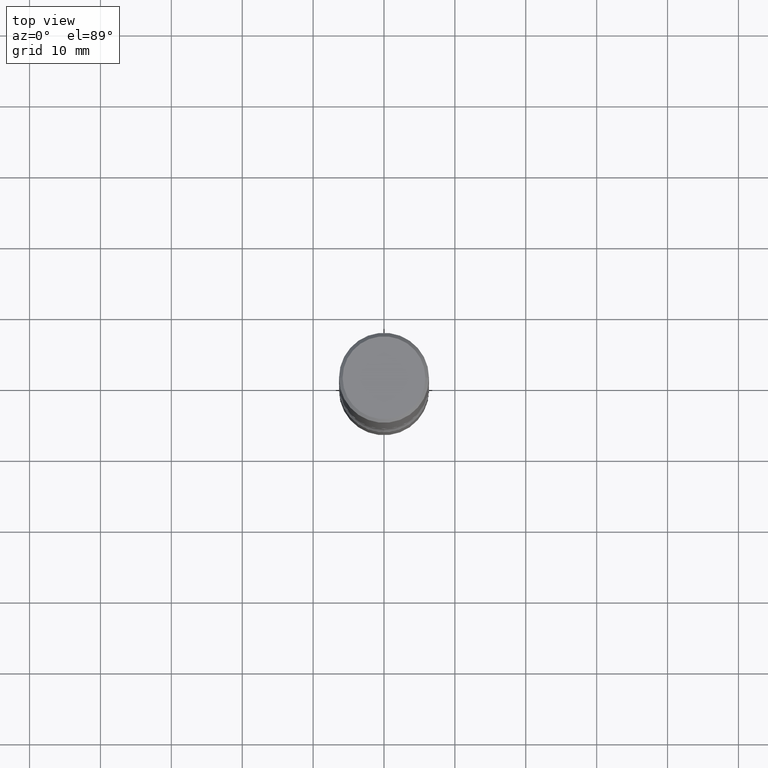
[diagram: clean part render]
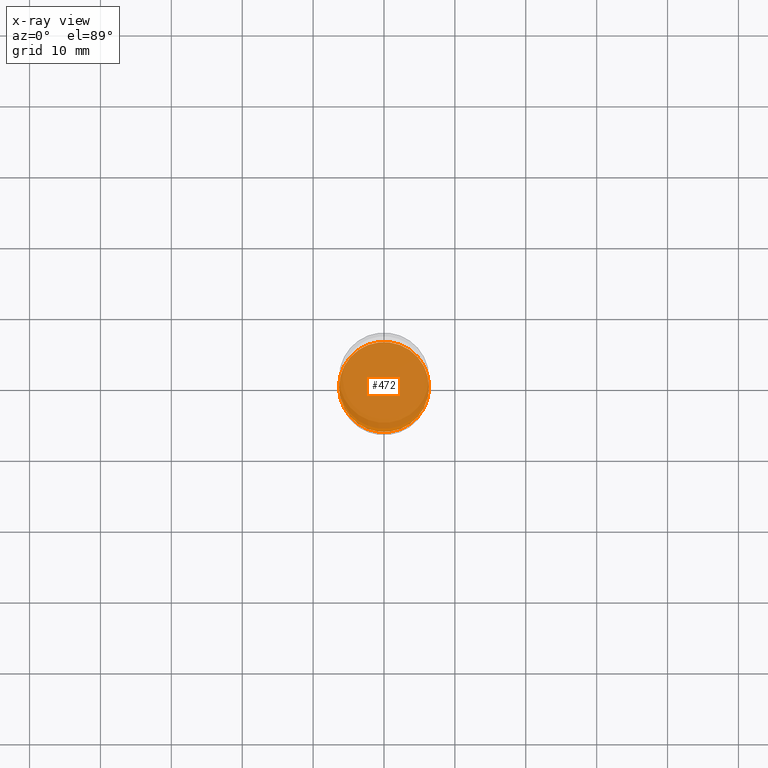
[diagram: x-ray — body ghosted, one internal face saturated and labeled with its STEP entity id]
A machine part, top view, then the same camera in x-ray: the body is ghosted and one INTERNAL B-rep face — a face not visible from any outside direction — is saturated and labeled: STEP entity #472.
In plain terms, the highlighted planar face has unit normal (0, -0, -1).
Its self-contained STEP definition (entity closure, byte-faithful):
#18 = DIRECTION ( 'NONE',  ( -2.445468806185136597E-29, 3.491481338843145583E-15, 1.000000000000000000 ) ) ;
#43 = AXIS2_PLACEMENT_3D ( 'NONE', #382, #267, #87 ) ;
#87 = DIRECTION ( 'NONE',  ( 1.000000000000000000, -6.982962677686270655E-15, 0.000000000000000000 ) ) ;
#145 = EDGE_CURVE ( 'NONE', #424, #324, #461, .T. ) ;
#146 = DIRECTION ( 'NONE',  ( 2.438088387897960049E-29, -3.491481338843145188E-15, -1.000000000000000000 ) ) ;
#161 = CARTESIAN_POINT ( 'NONE',  ( -0.2500000000000002776, -1.041764173650943238E-14, -3.000000000000000444 ) ) ;
#196 = CARTESIAN_POINT ( 'NONE',  ( 7.336406418555409790E-29, -1.047444401652943635E-14, -3.000000000000000444 ) ) ;
#228 = DIRECTION ( 'NONE',  ( 1.000000000000000000, -6.982962677686270655E-15, 0.000000000000000000 ) ) ;
#267 = DIRECTION ( 'NONE',  ( -2.445468806185136597E-29, 3.491481338843145583E-15, 1.000000000000000000 ) ) ;
#269 = ORIENTED_EDGE ( 'NONE', *, *, #145, .T. ) ;
#324 = VERTEX_POINT ( 'NONE', #501 ) ;
#326 = ORIENTED_EDGE ( 'NONE', *, *, #389, .T. ) ;
#344 = AXIS2_PLACEMENT_3D ( 'NONE', #476, #18, #228 ) ;
#370 = DIRECTION ( 'NONE',  ( -1.000000000000000000, 6.982962677686265922E-15, -4.876176775795935793E-29 ) ) ;
#374 = AXIS2_PLACEMENT_3D ( 'NONE', #196, #146, #370 ) ;
#382 = CARTESIAN_POINT ( 'NONE',  ( 7.336406418555409790E-29, -1.047444401652943635E-14, -3.000000000000000444 ) ) ;
#389 = EDGE_CURVE ( 'NONE', #324, #424, #470, .T. ) ;
#424 = VERTEX_POINT ( 'NONE', #161 ) ;
#457 = EDGE_LOOP ( 'NONE', ( #326, #269 ) ) ;
#461 = CIRCLE ( 'NONE', #43, 0.2500000000000002776 ) ;
#470 = CIRCLE ( 'NONE', #344, 0.2500000000000002776 ) ;
#472 = ADVANCED_FACE ( 'NONE', ( #529 ), #548, .F. ) ;
#476 = CARTESIAN_POINT ( 'NONE',  ( 7.336406418555409790E-29, -1.047444401652943635E-14, -3.000000000000000444 ) ) ;
#501 = CARTESIAN_POINT ( 'NONE',  ( 0.2500000000000002776, -1.222018468595100619E-14, -3.000000000000000444 ) ) ;
#529 = FACE_OUTER_BOUND ( 'NONE', #457, .T. ) ;
#548 = PLANE ( 'NONE',  #374 ) ;